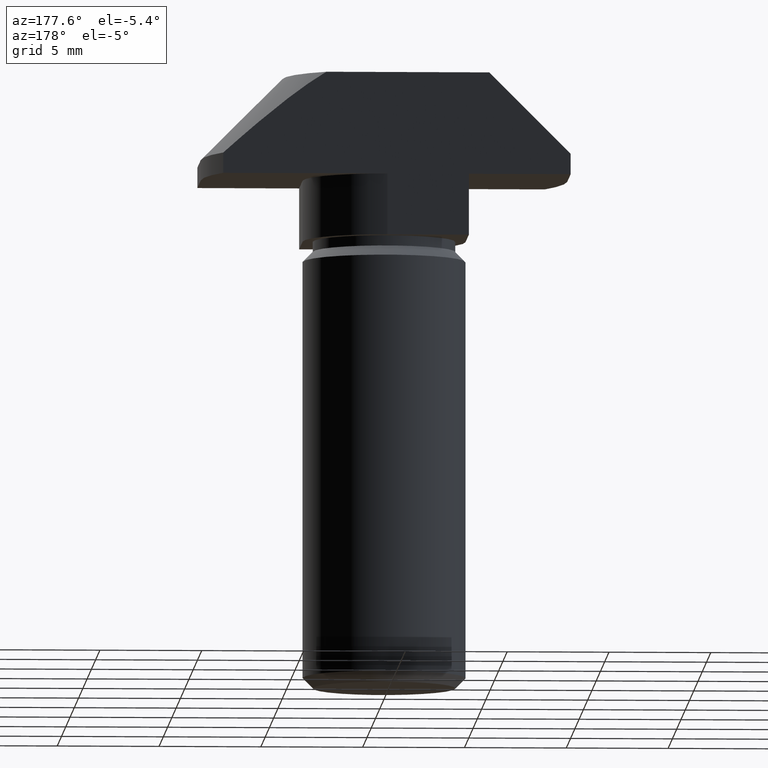
[diagram: clean part render]
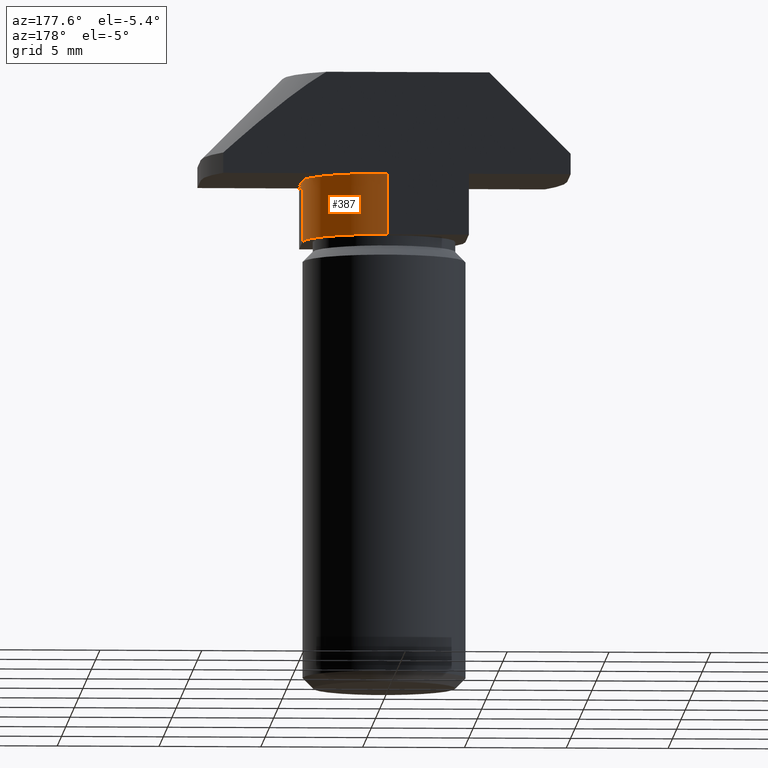
[diagram: same view with one face highlighted and labeled with its STEP entity id]
A machine part, auxiliary view. The second image highlights one B-rep face of the part: STEP entity #387.
In plain terms, the highlighted cylindrical surface (partial cylindrical patch) has radius 4 mm, axis along (0, 0, -1).
Its self-contained STEP definition (entity closure, byte-faithful):
#34=CYLINDRICAL_SURFACE('',#440,3.99999999999999);
#45=FACE_OUTER_BOUND('',#68,.T.);
#68=EDGE_LOOP('',(#294,#295,#296,#297));
#96=LINE('',#622,#134);
#97=LINE('',#628,#135);
#134=VECTOR('',#507,10.);
#135=VECTOR('',#514,10.);
#167=CIRCLE('',#441,3.99999999999999);
#168=CIRCLE('',#442,3.99999999999999);
#187=VERTEX_POINT('',#616);
#189=VERTEX_POINT('',#620);
#190=VERTEX_POINT('',#624);
#191=VERTEX_POINT('',#626);
#229=EDGE_CURVE('',#187,#189,#96,.T.);
#230=EDGE_CURVE('',#187,#190,#167,.T.);
#231=EDGE_CURVE('',#191,#189,#168,.T.);
#232=EDGE_CURVE('',#190,#191,#97,.T.);
#294=ORIENTED_EDGE('',*,*,#230,.F.);
#295=ORIENTED_EDGE('',*,*,#229,.T.);
#296=ORIENTED_EDGE('',*,*,#231,.F.);
#297=ORIENTED_EDGE('',*,*,#232,.F.);
#387=ADVANCED_FACE('',(#45),#34,.T.);
#440=AXIS2_PLACEMENT_3D('',#623,#508,#509);
#441=AXIS2_PLACEMENT_3D('',#625,#510,#511);
#442=AXIS2_PLACEMENT_3D('',#627,#512,#513);
#507=DIRECTION('',(0.,0.,-1.));
#508=DIRECTION('center_axis',(0.,0.,-1.));
#509=DIRECTION('ref_axis',(0.,-1.,0.));
#510=DIRECTION('center_axis',(0.,0.,1.));
#511=DIRECTION('ref_axis',(0.,-1.,0.));
#512=DIRECTION('center_axis',(0.,0.,-1.));
#513=DIRECTION('ref_axis',(0.,-1.,0.));
#514=DIRECTION('',(0.,0.,-1.));
#616=CARTESIAN_POINT('',(3.99999999999999,-1.49880108324396E-14,-5.));
#620=CARTESIAN_POINT('',(3.99999999999999,-1.49880108324396E-14,-8.));
#622=CARTESIAN_POINT('',(3.99999999999999,-1.49880108324396E-14,-5.));
#623=CARTESIAN_POINT('Origin',(0.,0.,-5.));
#624=CARTESIAN_POINT('',(0.,3.99999999999998,-5.));
#625=CARTESIAN_POINT('Origin',(0.,0.,-5.));
#626=CARTESIAN_POINT('',(0.,3.99999999999998,-8.));
#627=CARTESIAN_POINT('Origin',(0.,0.,-8.));
#628=CARTESIAN_POINT('',(0.,3.99999999999998,-5.));